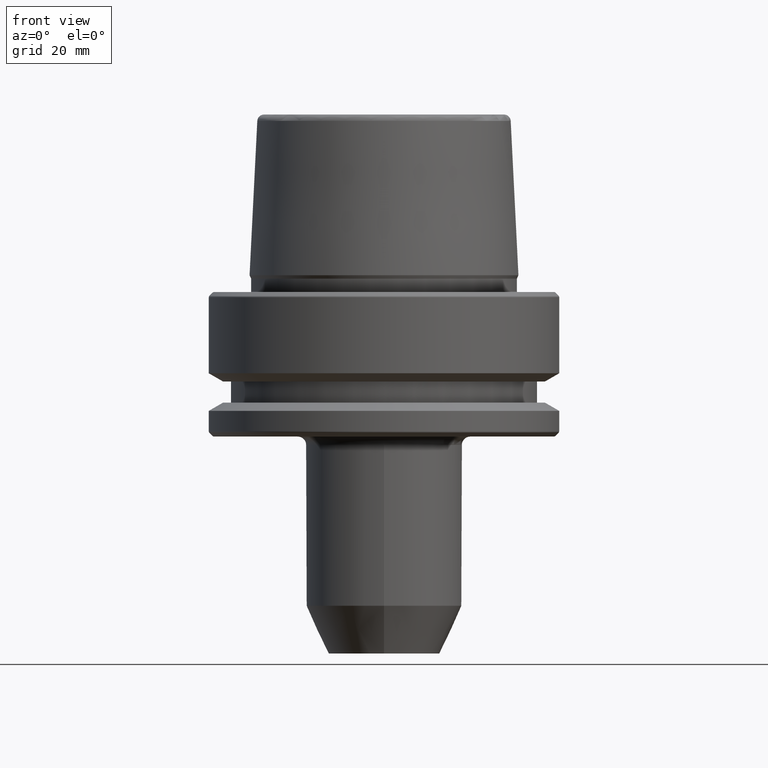
[diagram: clean part render]
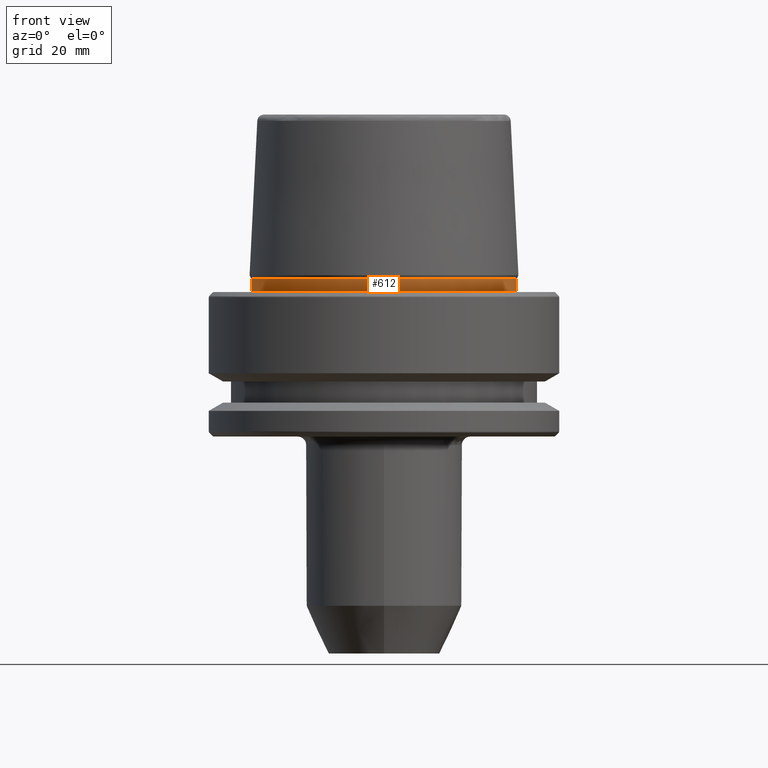
[diagram: same view with one face highlighted and labeled with its STEP entity id]
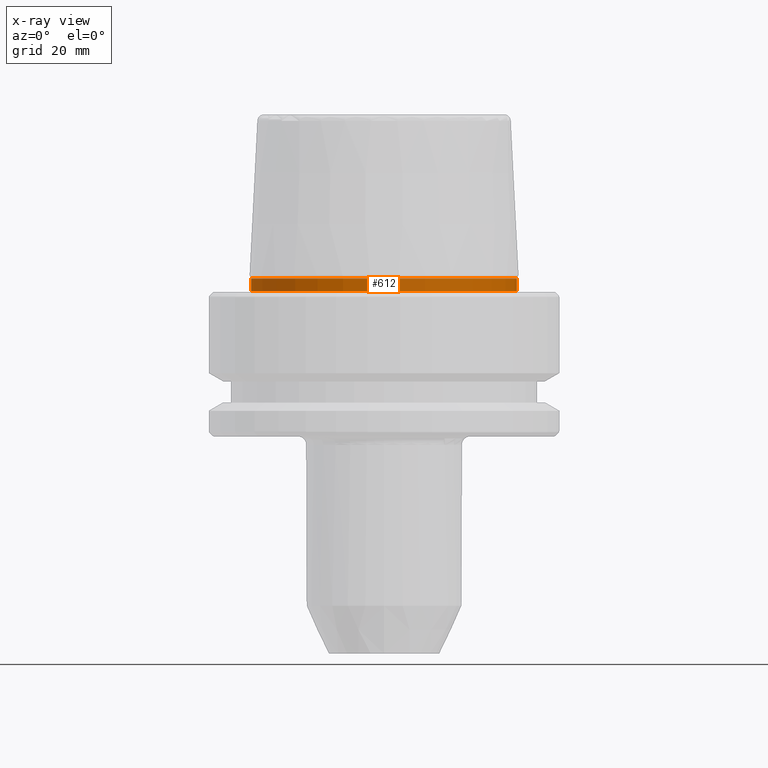
[diagram: x-ray of the same camera — body ghosted, the highlighted face saturated]
A machine part, front view. The second image highlights one B-rep face of the part: STEP entity #612.
The next image is the same camera in x-ray: the body ghosted, the highlighted face saturated — about 0% of this face is hidden behind the body in this view.
In plain terms, the highlighted cylindrical surface (partial cylindrical patch) has radius 23.89 mm, axis along (-0, -0, 1).
Its self-contained STEP definition (entity closure, byte-faithful):
#10 = AXIS2_PLACEMENT_3D ( 'NONE', #353, #533, #504 ) ;
#50 = FACE_OUTER_BOUND ( 'NONE', #943, .T. ) ;
#103 = CARTESIAN_POINT ( 'NONE',  ( -23.89000000000000800, 2.925681203163027800E-015, 0.1312552021302954000 ) ) ;
#177 = ORIENTED_EDGE ( 'NONE', *, *, #399, .T. ) ;
#184 = LINE ( 'NONE', #1233, #520 ) ;
#248 = CIRCLE ( 'NONE', #10, 23.89000000000000400 ) ;
#250 = CARTESIAN_POINT ( 'NONE',  ( 23.89000000000000100, 0.0000000000000000000, 2.398838415132276100 ) ) ;
#336 = EDGE_CURVE ( 'NONE', #570, #444, #1017, .T. ) ;
#353 = CARTESIAN_POINT ( 'NONE',  ( 0.0000000000000000000, 0.0000000000000000000, 0.1312552021302954000 ) ) ;
#372 = CARTESIAN_POINT ( 'NONE',  ( -23.89000000000000100, 2.942846235451747500E-015, 2.398838415132276100 ) ) ;
#377 = EDGE_CURVE ( 'NONE', #1048, #570, #184, .T. ) ;
#399 = EDGE_CURVE ( 'NONE', #1048, #806, #248, .T. ) ;
#407 = VECTOR ( 'NONE', #1177, 1000.000000000000000 ) ;
#444 = VERTEX_POINT ( 'NONE', #250 ) ;
#458 = DIRECTION ( 'NONE',  ( -0.0000000000000000000, -0.0000000000000000000, 1.000000000000000000 ) ) ;
#504 = DIRECTION ( 'NONE',  ( 1.000000000000000000, 0.0000000000000000000, 0.0000000000000000000 ) ) ;
#507 = CARTESIAN_POINT ( 'NONE',  ( 23.89000000000000100, 0.0000000000000000000, 78.96908074195309300 ) ) ;
#520 = VECTOR ( 'NONE', #996, 1000.000000000000000 ) ;
#533 = DIRECTION ( 'NONE',  ( -0.0000000000000000000, -0.0000000000000000000, 1.000000000000000000 ) ) ;
#553 = DIRECTION ( 'NONE',  ( -0.0000000000000000000, -0.0000000000000000000, 1.000000000000000000 ) ) ;
#570 = VERTEX_POINT ( 'NONE', #372 ) ;
#600 = CARTESIAN_POINT ( 'NONE',  ( 0.0000000000000000000, 0.0000000000000000000, 78.96908074195309300 ) ) ;
#612 = ADVANCED_FACE ( 'NONE', ( #50 ), #1237, .T. ) ;
#727 = ORIENTED_EDGE ( 'NONE', *, *, #377, .F. ) ;
#806 = VERTEX_POINT ( 'NONE', #1122 ) ;
#887 = CARTESIAN_POINT ( 'NONE',  ( 0.0000000000000000000, 0.0000000000000000000, 2.398838415132276100 ) ) ;
#909 = ORIENTED_EDGE ( 'NONE', *, *, #336, .F. ) ;
#943 = EDGE_LOOP ( 'NONE', ( #727, #177, #1096, #909 ) ) ;
#979 = DIRECTION ( 'NONE',  ( 1.000000000000000000, 0.0000000000000000000, 0.0000000000000000000 ) ) ;
#991 = LINE ( 'NONE', #507, #407 ) ;
#996 = DIRECTION ( 'NONE',  ( -0.0000000000000000000, -0.0000000000000000000, 1.000000000000000000 ) ) ;
#1017 = CIRCLE ( 'NONE', #1083, 23.89000000000000100 ) ;
#1034 = EDGE_CURVE ( 'NONE', #806, #444, #991, .T. ) ;
#1048 = VERTEX_POINT ( 'NONE', #103 ) ;
#1060 = DIRECTION ( 'NONE',  ( 1.000000000000000000, 0.0000000000000000000, 0.0000000000000000000 ) ) ;
#1083 = AXIS2_PLACEMENT_3D ( 'NONE', #887, #458, #1060 ) ;
#1096 = ORIENTED_EDGE ( 'NONE', *, *, #1034, .T. ) ;
#1122 = CARTESIAN_POINT ( 'NONE',  ( 23.89000000000000400, 0.0000000000000000000, 0.1312552021302954000 ) ) ;
#1132 = AXIS2_PLACEMENT_3D ( 'NONE', #600, #553, #979 ) ;
#1177 = DIRECTION ( 'NONE',  ( -0.0000000000000000000, -0.0000000000000000000, 1.000000000000000000 ) ) ;
#1233 = CARTESIAN_POINT ( 'NONE',  ( -23.89000000000000100, 2.925681203163027000E-015, 78.96908074195309300 ) ) ;
#1237 = CYLINDRICAL_SURFACE ( 'NONE', #1132, 23.89000000000000100 ) ;